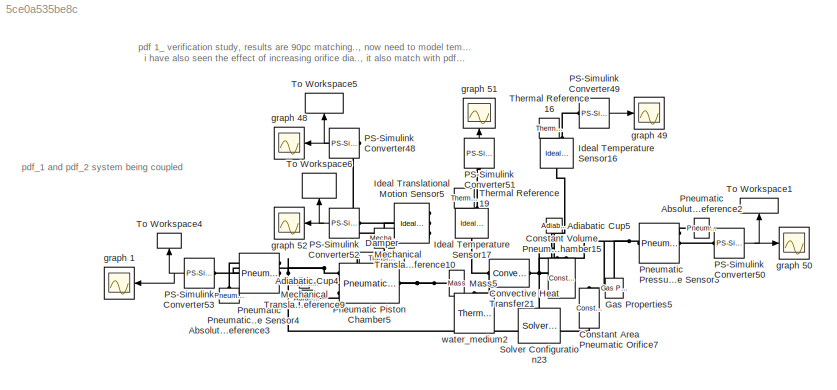
MODEL slx_5ce0a535be8c
KIND model
CONFIG AbsTol = auto
CONFIG FixedStep = auto
CONFIG MaxStep = auto
CONFIG MinStep = auto
CONFIG RelTol = 1e-3
CONFIG SampleTimeConstraint = Unconstrained
CONFIG Solver = VariableStepAuto
CONFIG SolverMode = Auto
CONFIG SolverName = VariableStepAuto
CONFIG StartTime = 0.0
CONFIG StopTime = time
BLOCK [Reference] Adiabatic Cup4  REF=fl_lib/Pneumatic/Pneumatic Elements/Adiabatic Cup
  Ports = [0, 0, 0, 0, 0, 1]
  SourceBlock = fl_lib/Pneumatic/Pneumatic Elements/Adiabatic Cup
  SourceType = Adiabatic Cup
BLOCK [Reference] Adiabatic Cup5  REF=fl_lib/Pneumatic/Pneumatic Elements/Adiabatic Cup
  Ports = [0, 0, 0, 0, 0, 1]
  SourceBlock = fl_lib/Pneumatic/Pneumatic Elements/Adiabatic Cup
  SourceType = Adiabatic Cup
BLOCK [Reference] Constant Area Pneumatic Orifice7  REF=fl_lib/Pneumatic/Pneumatic Elements/Constant Area
Pneumatic Orifice
  Ports = [0, 0, 0, 0, 0, 1, 1]
  SourceBlock = fl_lib/Pneumatic/Pneumatic Elements/Constant Area\nPneumatic Orifice
  SourceType = Constant Area\nPneumatic Orifice
BLOCK [Reference] Constant Volume Pneumatic Chamber15  REF=fl_lib/Pneumatic/Pneumatic Elements/Constant Volume
Pneumatic Chamber
  Ports = [0, 0, 0, 0, 0, 2]
  SourceBlock = fl_lib/Pneumatic/Pneumatic Elements/Constant Volume\nPneumatic Chamber
  SourceType = Constant Volume\nPneumatic Chamber
BLOCK [Reference] Convective Heat Transfer21  REF=fl_lib/Thermal/Thermal Elements/Convective Heat
Transfer
  Ports = [0, 0, 0, 0, 0, 1, 1]
  SourceBlock = fl_lib/Thermal/Thermal Elements/Convective Heat\nTransfer
  SourceType = Convective Heat\nTransfer
BLOCK [Reference] Damper  REF=fl_lib/Mechanical/Translational
Elements/Translational Damper
  Ports = [0, 0, 0, 0, 0, 1, 1]
  SourceBlock = fl_lib/Mechanical/Translational\nElements/Translational Damper
  SourceType = Translational Damper
BLOCK [Reference] Gas Properties5  REF=fl_lib/Pneumatic/Pneumatic Utilities/Gas Properties
  Ports = [0, 0, 0, 0, 0, 0, 1]
  SourceBlock = fl_lib/Pneumatic/Pneumatic Utilities/Gas Properties
  SourceType = Gas Properties
BLOCK [Reference] Ideal Temperature Sensor16  REF=fl_lib/Thermal/Thermal Sensors/Ideal Temperature
Sensor
  Ports = [0, 0, 0, 0, 0, 1, 2]
  SourceBlock = fl_lib/Thermal/Thermal Sensors/Ideal Temperature\nSensor
  SourceType = Ideal Temperature\nSensor
BLOCK [Reference] Ideal Temperature Sensor17  REF=fl_lib/Thermal/Thermal Sensors/Ideal Temperature
Sensor
  Ports = [0, 0, 0, 0, 0, 1, 2]
  SourceBlock = fl_lib/Thermal/Thermal Sensors/Ideal Temperature\nSensor
  SourceType = Ideal Temperature\nSensor
BLOCK [Reference] Ideal Translational Motion Sensor5  REF=fl_lib/Mechanical/Mechanical Sensors/Ideal Translational
Motion Sensor
  Ports = [0, 0, 0, 0, 0, 1, 3]
  SourceBlock = fl_lib/Mechanical/Mechanical Sensors/Ideal Translational\nMotion Sensor
  SourceType = Ideal Translational\nMotion Sensor
BLOCK [Reference] Mass5  REF=fl_lib/Mechanical/Translational
Elements/Mass
  Ports = [0, 0, 0, 0, 0, 1]
  SourceBlock = fl_lib/Mechanical/Translational\nElements/Mass
  SourceType = Mass
BLOCK [Reference] Mechanical Translational Reference10  REF=fl_lib/Mechanical/Translational
Elements/Mechanical
Translational
Reference
  Ports = [0, 0, 0, 0, 0, 1]
  SourceBlock = fl_lib/Mechanical/Translational\nElements/Mechanical\nTranslational\nReference
  SourceType = Mechanical\nTranslational\nReference
BLOCK [Reference] Mechanical Translational Reference9  REF=fl_lib/Mechanical/Translational
Elements/Mechanical
Translational
Reference
  Ports = [0, 0, 0, 0, 0, 1]
  SourceBlock = fl_lib/Mechanical/Translational\nElements/Mechanical\nTranslational\nReference
  SourceType = Mechanical\nTranslational\nReference
BLOCK [Reference] PS-Simulink Converter48  REF=nesl_utility/PS-Simulink
Converter
  Ports = [0, 1, 0, 0, 0, 1]
  SourceBlock = nesl_utility/PS-Simulink\nConverter
  SourceType = PS-Simulink\nConverter
BLOCK [Reference] PS-Simulink Converter49  REF=nesl_utility/PS-Simulink
Converter
  Ports = [0, 1, 0, 0, 0, 1]
  SourceBlock = nesl_utility/PS-Simulink\nConverter
  SourceType = PS-Simulink\nConverter
BLOCK [Reference] PS-Simulink Converter50  REF=nesl_utility/PS-Simulink
Converter
  Ports = [0, 1, 0, 0, 0, 1]
  SourceBlock = nesl_utility/PS-Simulink\nConverter
  SourceType = PS-Simulink\nConverter
BLOCK [Reference] PS-Simulink Converter51  REF=nesl_utility/PS-Simulink
Converter
  Ports = [0, 1, 0, 0, 0, 1]
  SourceBlock = nesl_utility/PS-Simulink\nConverter
  SourceType = PS-Simulink\nConverter
BLOCK [Reference] PS-Simulink Converter52  REF=nesl_utility/PS-Simulink
Converter
  Ports = [0, 1, 0, 0, 0, 1]
  SourceBlock = nesl_utility/PS-Simulink\nConverter
  SourceType = PS-Simulink\nConverter
BLOCK [Reference] PS-Simulink Converter53  REF=nesl_utility/PS-Simulink
Converter
  Ports = [0, 1, 0, 0, 0, 1]
  SourceBlock = nesl_utility/PS-Simulink\nConverter
  SourceType = PS-Simulink\nConverter
BLOCK [Reference] Pneumatic Absolute Reference2  REF=fl_lib/Pneumatic/Pneumatic Elements/Pneumatic Absolute
Reference
  Ports = [0, 0, 0, 0, 0, 1]
  SourceBlock = fl_lib/Pneumatic/Pneumatic Elements/Pneumatic Absolute\nReference
  SourceType = Pneumatic Absolute\nReference
BLOCK [Reference] Pneumatic Absolute Reference3  REF=fl_lib/Pneumatic/Pneumatic Elements/Pneumatic Absolute
Reference
  Ports = [0, 0, 0, 0, 0, 1]
  SourceBlock = fl_lib/Pneumatic/Pneumatic Elements/Pneumatic Absolute\nReference
  SourceType = Pneumatic Absolute\nReference
BLOCK [Reference] Pneumatic Piston Chamber5  REF=fl_lib/Pneumatic/Pneumatic Elements/Pneumatic Piston
Chamber
  Ports = [0, 0, 0, 0, 0, 3, 1]
  SourceBlock = fl_lib/Pneumatic/Pneumatic Elements/Pneumatic Piston\nChamber
  SourceType = Pneumatic Piston\nChamber
BLOCK [Reference] Pneumatic Pressure & Temperature Sensor3  REF=fl_lib/Pneumatic/Pneumatic Sensors/Pneumatic Pressure &
Temperature Sensor
  Ports = [0, 0, 0, 0, 0, 1, 3]
  SourceBlock = fl_lib/Pneumatic/Pneumatic Sensors/Pneumatic Pressure &\nTemperature Sensor
  SourceType = Pneumatic Pressure &\nTemperature Sensor
BLOCK [Reference] Pneumatic Pressure & Temperature Sensor4  REF=fl_lib/Pneumatic/Pneumatic Sensors/Pneumatic Pressure &
Temperature Sensor
  Ports = [0, 0, 0, 0, 0, 1, 3]
  SourceBlock = fl_lib/Pneumatic/Pneumatic Sensors/Pneumatic Pressure &\nTemperature Sensor
  SourceType = Pneumatic Pressure &\nTemperature Sensor
BLOCK [Reference] Solver Configuration23  REF=nesl_utility/Solver
Configuration
  Ports = [0, 0, 0, 0, 0, 0, 1]
  SourceBlock = nesl_utility/Solver\nConfiguration
  SourceType = Solver\nConfiguration
BLOCK [Reference] Thermal Reference16  REF=fl_lib/Thermal/Thermal Elements/Thermal Reference
  Ports = [0, 0, 0, 0, 0, 1]
  SourceBlock = fl_lib/Thermal/Thermal Elements/Thermal Reference
  SourceType = Thermal Reference
BLOCK [Reference] Thermal Reference19  REF=fl_lib/Thermal/Thermal Elements/Thermal Reference
  Ports = [0, 0, 0, 0, 0, 1]
  SourceBlock = fl_lib/Thermal/Thermal Elements/Thermal Reference
  SourceType = Thermal Reference
BLOCK [ToWorkspace] To Workspace1
  FixptAsFi = on
  MaxDataPoints = inf
  Ports = [1]
  SampleTime = time_step
  Save2DSignal = 3-D array (concatenate along third dimension)
  SaveFormat = Structure With Time
  VariableName = sim1
BLOCK [ToWorkspace] To Workspace4
  FixptAsFi = on
  MaxDataPoints = inf
  Ports = [1]
  SampleTime = time_step
  Save2DSignal = 3-D array (concatenate along third dimension)
  SaveFormat = Structure With Time
  VariableName = sim2
BLOCK [ToWorkspace] To Workspace5
  FixptAsFi = on
  MaxDataPoints = inf
  Ports = [1]
  SampleTime = time_step
  Save2DSignal = 3-D array (concatenate along third dimension)
  SaveFormat = Structure With Time
  VariableName = sim3
BLOCK [ToWorkspace] To Workspace6
  FixptAsFi = on
  MaxDataPoints = inf
  Ports = [1]
  SampleTime = time_step
  Save2DSignal = 3-D array (concatenate along third dimension)
  SaveFormat = Structure With Time
  VariableName = sim4
BLOCK [Scope] graph 1
  Ports = [1]
  ScopeSpecificationString = Simulink.scopes.TimeScopeBlockCfg('CurrentConfiguration', extmgr.ConfigurationSet(extmgr.Configuration('Core','General UI',true),extmgr.Configuration('Core','Source UI',true),extmgr.Configuration('Sources','WiredSimulink',true,'DataLoggingLimitDataPoints',true,'DataLoggingSaveFormat','Array','DataLoggingDecimation','1','DataLoggingDecimateData',true,'DataLoggingVariableName','ScopeData3'),extmgr.C...<+1576ch>
BLOCK [Scope] graph 48
  Ports = [1]
  ScopeSpecificationString = Simulink.scopes.TimeScopeBlockCfg('CurrentConfiguration', extmgr.ConfigurationSet(extmgr.Configuration('Core','General UI',true),extmgr.Configuration('Core','Source UI',true),extmgr.Configuration('Sources','WiredSimulink',true,'DataLoggingVariableName','ScopeData1','DataLoggingLimitDataPoints',true,'DataLoggingSaveFormat','Array','DataLoggingDecimation','1','DataLoggingDecimateData',true),extmgr.C...<+1507ch>
BLOCK [Scope] graph 49
  Ports = [1]
  ScopeSpecificationString = Simulink.scopes.TimeScopeBlockCfg('CurrentConfiguration', extmgr.ConfigurationSet(extmgr.Configuration('Core','General UI',true),extmgr.Configuration('Core','Source UI',true),extmgr.Configuration('Sources','WiredSimulink',true,'DataLoggingVariableName','ScopeData2','DataLoggingLimitDataPoints',true,'DataLoggingSaveFormat','Array','DataLoggingDecimation','1','DataLoggingDecimateData',true),extmgr.C...<+1521ch>
BLOCK [Scope] graph 50
  Ports = [1]
  ScopeSpecificationString = C++SS(StrPVP('SaveName','ScopeData3'),StrPVP('LimitDataPoints','on'),StrPVP('DataFormat','Array'),StrPVP('Decimation','1'),StrPVP('BlockParamSampleInput','off'),StrPVP('SaveName','ScopeData3'))
BLOCK [Scope] graph 51
  Ports = [1]
  ScopeSpecificationString = C++SS(StrPVP('SaveName','ScopeData4'),StrPVP('LimitDataPoints','on'),StrPVP('DataFormat','Array'),StrPVP('Decimation','1'),StrPVP('BlockParamSampleInput','off'),StrPVP('SaveName','ScopeData4'))
BLOCK [Scope] graph 52
  Ports = [1]
  ScopeSpecificationString = Simulink.scopes.TimeScopeBlockCfg('CurrentConfiguration', extmgr.ConfigurationSet(extmgr.Configuration('Core','General UI',true),extmgr.Configuration('Core','Source UI',true),extmgr.Configuration('Sources','WiredSimulink',true,'DataLoggingLimitDataPoints',true,'DataLoggingSaveFormat','Array','DataLoggingDecimation','1','DataLoggingDecimateData',true),extmgr.Configuration('Visuals','Time Domain',tr...<+1468ch>
BLOCK [Reference] water_medium2  REF=fl_lib/Thermal/Thermal Elements/Thermal Mass
  Ports = [0, 0, 0, 0, 0, 1]
  SourceBlock = fl_lib/Thermal/Thermal Elements/Thermal Mass
  SourceType = Thermal Mass
ANNOTATION (root): pdf_1 and pdf_2 system being coupled
ANNOTATION (root): pdf 1_ verification study, results are 90pc matching.., now need to model temperature conditions more a/c to the paper.... i have also seen the effect of increasing orifice dia.., it also match with pdf.., specificially pressure profile
NET PS-Simulink Converter48:1 -> To Workspace5:1, graph 48:1
LINE PS-Simulink Converter49:1 -> graph 49:1
NET PS-Simulink Converter50:1 -> To Workspace1:1, graph 50:1
LINE PS-Simulink Converter51:1 -> graph 51:1
NET PS-Simulink Converter52:1 -> To Workspace6:1, graph 52:1
NET PS-Simulink Converter53:1 -> To Workspace4:1, graph 1:1
PLINE Adiabatic Cup4:LConn1 -- Pneumatic Piston Chamber5:LConn3
PNET net1: Adiabatic Cup5:LConn1 -- Constant Volume Pneumatic Chamber15:LConn2 -- Convective Heat Transfer21:LConn1 -- Ideal Temperature Sensor16:LConn1 -- Solver Configuration23:RConn1
PNET net2: Constant Area Pneumatic Orifice7:LConn1 -- Constant Volume Pneumatic Chamber15:LConn1 -- Gas Properties5:RConn1 -- Pneumatic Pressure & Temperature Sensor3:LConn1
PNET net3: Constant Area Pneumatic Orifice7:RConn1 -- Pneumatic Piston Chamber5:LConn1 -- Pneumatic Pressure & Temperature Sensor4:LConn1
PNET net4: Convective Heat Transfer21:RConn1 -- Ideal Temperature Sensor17:LConn1 -- water_medium2:LConn1
PNET net5: Damper:LConn1 -- Ideal Translational Motion Sensor5:LConn1 -- Mass5:LConn1 -- Pneumatic Piston Chamber5:RConn1
PNET net6: Damper:RConn1 -- Mechanical Translational Reference9:LConn1 -- Pneumatic Piston Chamber5:LConn2
PLINE Ideal Temperature Sensor16:RConn1 -- Thermal Reference16:LConn1
PLINE Ideal Temperature Sensor16:RConn2 -- PS-Simulink Converter49:LConn1
PLINE Ideal Temperature Sensor17:RConn1 -- Thermal Reference19:LConn1
PLINE Ideal Temperature Sensor17:RConn2 -- PS-Simulink Converter51:LConn1
PLINE Ideal Translational Motion Sensor5:RConn1 -- Mechanical Translational Reference10:LConn1
PLINE Ideal Translational Motion Sensor5:RConn2 -- PS-Simulink Converter52:LConn1
PLINE Ideal Translational Motion Sensor5:RConn3 -- PS-Simulink Converter48:LConn1
PLINE PS-Simulink Converter50:LConn1 -- Pneumatic Pressure & Temperature Sensor3:RConn2
PLINE PS-Simulink Converter53:LConn1 -- Pneumatic Pressure & Temperature Sensor4:RConn2
PLINE Pneumatic Absolute Reference2:LConn1 -- Pneumatic Pressure & Temperature Sensor3:RConn1
PLINE Pneumatic Absolute Reference3:LConn1 -- Pneumatic Pressure & Temperature Sensor4:RConn1
note: NET lines group one-source signal fan-out (src -> all destinations, sorted); 1:1 wires keep LINE; PNET lines group multi-terminal physical nets as a canonical sorted terminal list (undirected conserving connections); 2-terminal nets keep the pairwise PLINE form
